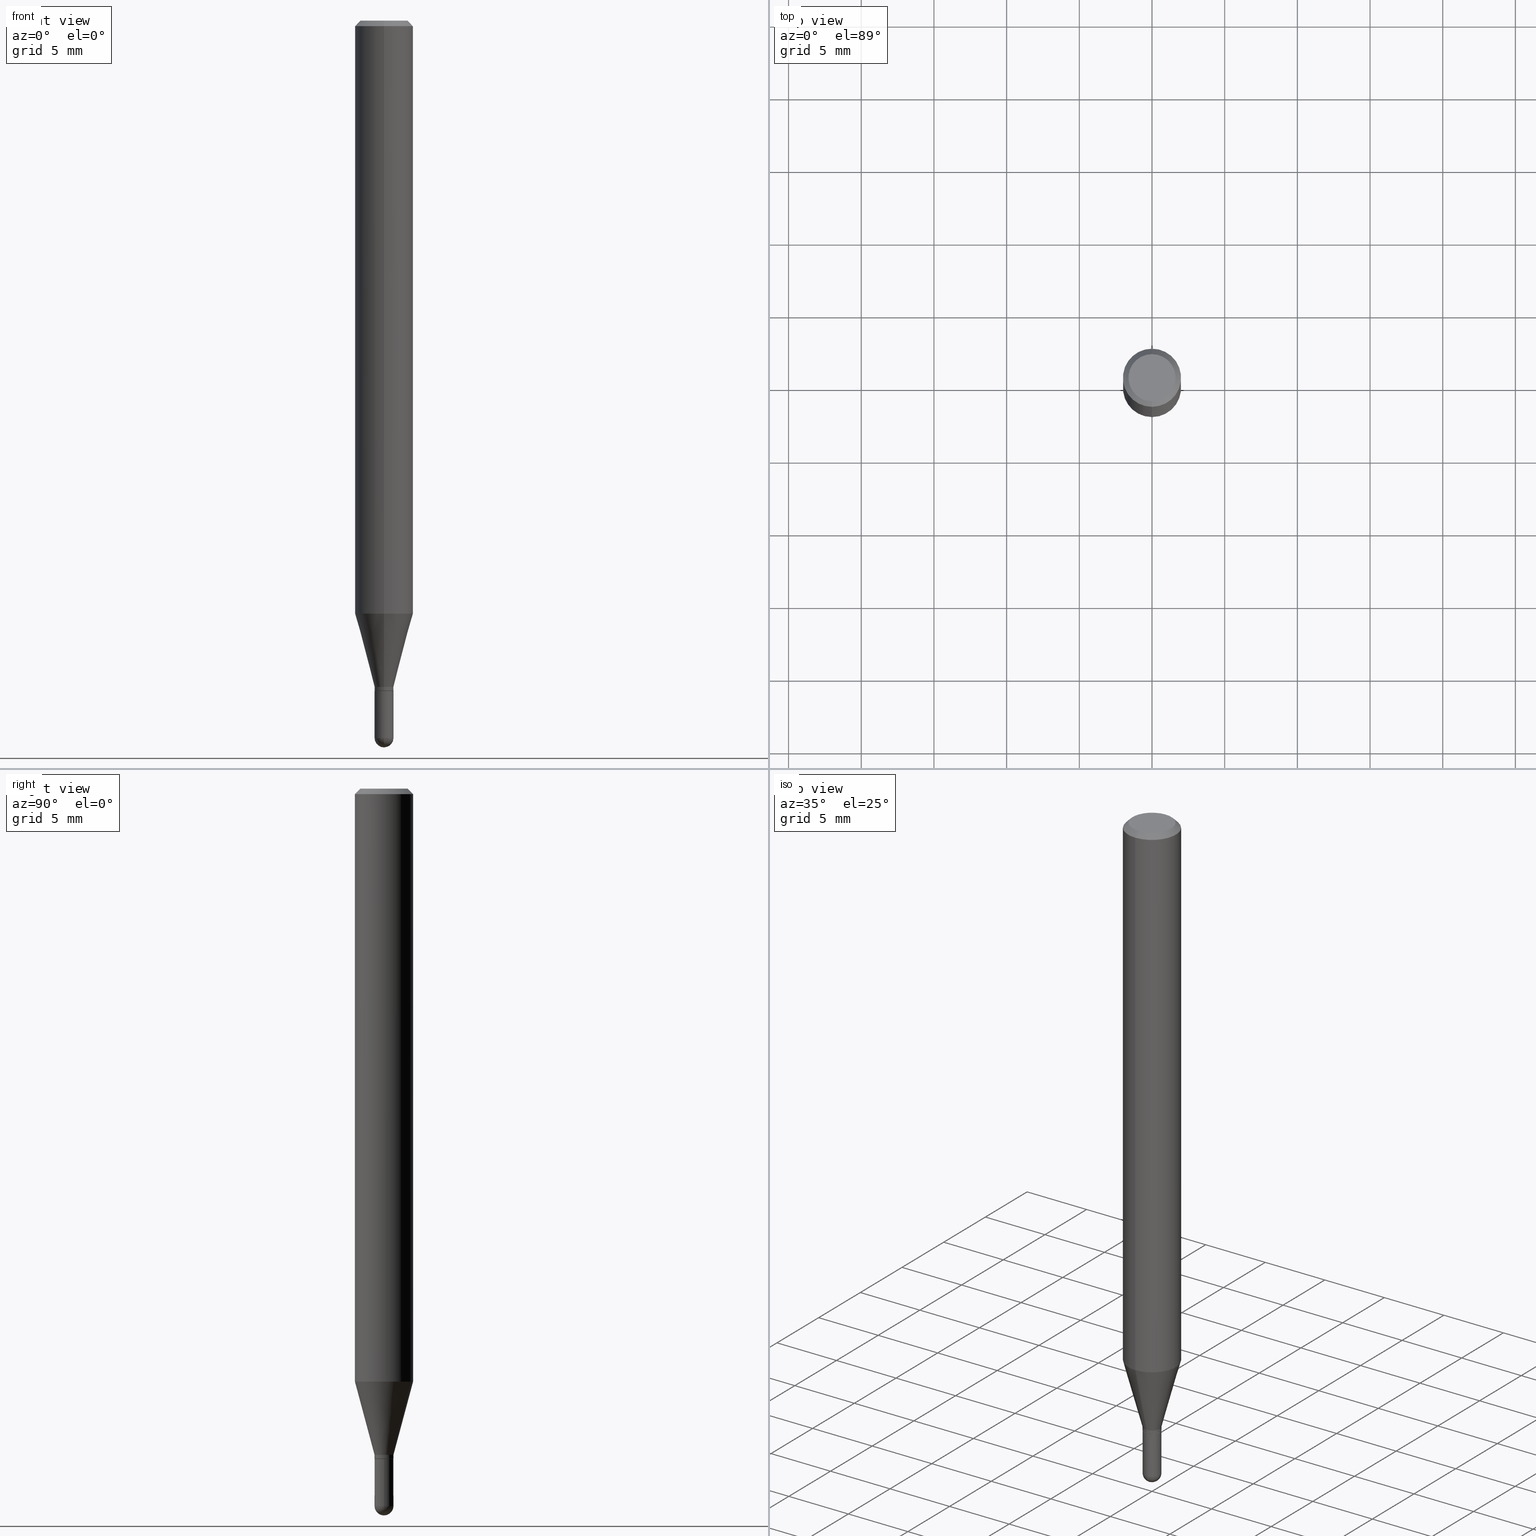
[diagram: canonical four-view strip — front | top / right | iso, engineering-drawing reading convention]
A machine part, canonical four-view strip (front | top / right | iso — engineering-drawing reading convention). The complete STEP part file that produces these views, byte-faithful:
ISO-10303-21;
HEADER;
FILE_DESCRIPTION (( 'STEP AP203' ),
    '1' );
FILE_NAME ('03006.STEP',
    '2024-03-08T18:00:04',
    ( '' ),
    ( '' ),
    'SwSTEP 2.0',
    'SolidWorks 2023',
    '' );
FILE_SCHEMA (( 'CONFIG_CONTROL_DESIGN' ));
ENDSEC;

DATA;
#1 = ORIENTED_EDGE ( 'NONE', *, *, #60, .F. ) ;
#2 = CARTESIAN_POINT ( 'NONE',  ( 5.595524044111178503E-16, 0.07874999999999436617, -1.606141499577714127 ) ) ;
#3 = AXIS2_PLACEMENT_3D ( 'NONE', #13, #451, #167 ) ;
#4 = EDGE_LOOP ( 'NONE', ( #87, #277, #6, #43 ) ) ;
#5 = MECHANICAL_CONTEXT ( 'NONE', #153, 'mechanical' ) ;
#6 = ORIENTED_EDGE ( 'NONE', *, *, #151, .F. ) ;
#7 = ADVANCED_FACE ( 'NONE', ( #249 ), #301, .F. ) ;
#8 = APPROVAL_ROLE ( '' ) ;
#9 = ORIENTED_EDGE ( 'NONE', *, *, #209, .T. ) ;
#10 = CALENDAR_DATE ( 2024, 8, 3 ) ;
#11 = EDGE_LOOP ( 'NONE', ( #435, #394 ) ) ;
#12 = AXIS2_PLACEMENT_3D ( 'NONE', #432, #510, #39 ) ;
#13 = CARTESIAN_POINT ( 'NONE',  ( 1.787638445488127977E-16, 0.02559999999999366602, -1.815000000000000169 ) ) ;
#14 = APPROVAL_STATUS ( 'not_yet_approved' ) ;
#15 = ORIENTED_EDGE ( 'NONE', *, *, #256, .F. ) ;
#16 = DIRECTION ( 'NONE',  ( -6.982962677686264344E-15, -1.000000000000000000, 3.496114991891765576E-15 ) ) ;
#17 = CYLINDRICAL_SURFACE ( 'NONE', #348, 0.07875000000000000056 ) ;
#18 = LOCAL_TIME ( 13, 0, 4.000000000000000000, #361 ) ;
#19 = DIRECTION ( 'NONE',  ( 1.000000000000000000, -6.982962677686263555E-15, 0.000000000000000000 ) ) ;
#20 = CARTESIAN_POINT ( 'NONE',  ( 4.438587763589642652E-29, -6.336950013797593510E-15, -1.814999999999999947 ) ) ;
#21 = VERTEX_POINT ( 'NONE', #411 ) ;
#22 = ADVANCED_FACE ( 'NONE', ( #210 ), #406, .T. ) ;
#23 = FACE_OUTER_BOUND ( 'NONE', #324, .T. ) ;
#24 = VERTEX_POINT ( 'NONE', #371 ) ;
#25 = DIRECTION ( 'NONE',  ( -2.445502900049389790E-29, 3.491432514489032662E-15, 1.000000000000000000 ) ) ;
#26 = CARTESIAN_POINT ( 'NONE',  ( 5.499083108677937401E-16, 0.07874999999999994504, -0.01500000000000029261 ) ) ;
#27 = CARTESIAN_POINT ( 'NONE',  ( 4.749112117836802061E-29, -6.786734189044164629E-15, -1.942899999999999849 ) ) ;
#28 = VECTOR ( 'NONE', #377, 39.37007874015748854 ) ;
#29 = LINE ( 'NONE', #145, #272 ) ;
#30 = AXIS2_PLACEMENT_3D ( 'NONE', #342, #500, #141 ) ;
#31 = DIRECTION ( 'NONE',  ( 4.937700262164548831E-15, 0.7071067811865452413, -0.7071067811865497932 ) ) ;
#32 = CARTESIAN_POINT ( 'NONE',  ( 4.114225145606722561E-46, -5.873859092544759486E-32, -1.682363633886359709E-17 ) ) ;
#33 = ADVANCED_FACE ( 'NONE', ( #453 ), #17, .T. ) ;
#34 = DIRECTION ( 'NONE',  ( 5.024295867790934632E-15, 0.7071067811869542474, 0.7071067811861405650 ) ) ;
#35 =( LENGTH_UNIT ( ) NAMED_UNIT ( * ) SI_UNIT ( $, .METRE. ) );
#36 = APPROVAL_PERSON_ORGANIZATION ( #440, #275, #86 ) ;
#37 = VECTOR ( 'NONE', #463, 39.37007874015748143 ) ;
#38 = SECURITY_CLASSIFICATION ( '', '', #486 ) ;
#39 = DIRECTION ( 'NONE',  ( -6.982962677686264344E-15, -1.000000000000000000, 3.469013325287953293E-15 ) ) ;
#40 = ORIENTED_EDGE ( 'NONE', *, *, #385, .F. ) ;
#41 = EDGE_CURVE ( 'NONE', #403, #158, #329, .T. ) ;
#42 = LINE ( 'NONE', #75, #214 ) ;
#43 = ORIENTED_EDGE ( 'NONE', *, *, #93, .F. ) ;
#44 = FACE_OUTER_BOUND ( 'NONE', #337, .T. ) ;
#45 = AXIS2_PLACEMENT_3D ( 'NONE', #341, #415, #454 ) ;
#46 = EDGE_CURVE ( 'NONE', #400, #166, #282, .T. ) ;
#47 = CONICAL_SURFACE ( 'NONE', #488, 0.07875000000000000056, 0.7853981633974485010 ) ;
#48 = EDGE_LOOP ( 'NONE', ( #114, #123, #196, #40 ) ) ;
#49 = APPROVAL_PERSON_ORGANIZATION ( #286, #221, #8 ) ;
#50 = DIMENSIONAL_EXPONENTS ( 1.000000000000000000, 0.000000000000000000, 0.000000000000000000, 0.000000000000000000, 0.000000000000000000, 0.000000000000000000, 0.000000000000000000 ) ;
#51 = EDGE_LOOP ( 'NONE', ( #340, #285, #1, #15 ) ) ;
#52 = EDGE_LOOP ( 'NONE', ( #374, #477, #364, #360 ) ) ;
#53 = ORIENTED_EDGE ( 'NONE', *, *, #93, .T. ) ;
#54 = CONICAL_SURFACE ( 'NONE', #181, 0.02559999999999964734, 0.2617993877991505181 ) ;
#55 = PERSON_AND_ORGANIZATION ( #120, #311 ) ;
#56 = DIRECTION ( 'NONE',  ( -2.445502900049389790E-29, 3.491432514489032662E-15, 1.000000000000000000 ) ) ;
#57 = CYLINDRICAL_SURFACE ( 'NONE', #139, 0.07875000000000000056 ) ;
#58 = EDGE_LOOP ( 'NONE', ( #280, #319, #112, #322 ) ) ;
#59 = CARTESIAN_POINT ( 'NONE',  ( 4.438525883226023529E-29, -6.337038630000309601E-15, -1.815000000000000169 ) ) ;
#60 = EDGE_CURVE ( 'NONE', #21, #84, #90, .T. ) ;
#61 = ADVANCED_FACE ( 'NONE', ( #206 ), #213, .F. ) ;
#62 = CARTESIAN_POINT ( 'NONE',  ( 4.751301343537101385E-29, -6.783599093238347569E-15, -1.942899999999999849 ) ) ;
#63 = LOCAL_TIME ( 13, 0, 4.000000000000000000, #162 ) ;
#64 = CARTESIAN_POINT ( 'NONE',  ( -1.752723632098809204E-16, -0.02510000000000633946, -1.814999999999999947 ) ) ;
#65 = CARTESIAN_POINT ( 'NONE',  ( -5.402642173245076924E-16, -0.07875000000000004219, -0.01499999999999974097 ) ) ;
#66 = DIRECTION ( 'NONE',  ( 1.000000000000000000, -6.982962677686263555E-15, 0.000000000000000000 ) ) ;
#67 = LINE ( 'NONE', #218, #77 ) ;
#68 = DIRECTION ( 'NONE',  ( 6.982962677686266711E-15, 1.000000000000000000, 0.000000000000000000 ) ) ;
#69 = DIRECTION ( 'NONE',  ( -2.445468806185136597E-29, 3.491481338843145583E-15, 1.000000000000000000 ) ) ;
#70 = CYLINDRICAL_SURFACE ( 'NONE', #373, 0.02559999999999992490 ) ;
#71 = CARTESIAN_POINT ( 'NONE',  ( -5.499083108677933457E-16, -0.07875000000000000056, 2.749503105160112772E-16 ) ) ;
#72 = CARTESIAN_POINT ( 'NONE',  ( 4.438587763589642652E-29, -6.336950013797593510E-15, -1.814999999999999947 ) ) ;
#73 = AXIS2_PLACEMENT_3D ( 'NONE', #20, #186, #98 ) ;
#74 = LINE ( 'NONE', #421, #426 ) ;
#75 = CARTESIAN_POINT ( 'NONE',  ( 1.783462266758295010E-16, 0.02509999999999366210, -1.814999999999999947 ) ) ;
#76 = CARTESIAN_POINT ( 'NONE',  ( 4.975360907851465623E-16, 0.06374999999999998723, -2.394024591375393642E-16 ) ) ;
#77 = VECTOR ( 'NONE', #497, 39.37007874015748854 ) ;
#78 = DIRECTION ( 'NONE',  ( 1.000000000000000000, -6.982962677686263555E-15, 0.000000000000000000 ) ) ;
#79 = EDGE_LOOP ( 'NONE', ( #92, #459, #397, #194 ) ) ;
#80 = ORIENTED_EDGE ( 'NONE', *, *, #227, .T. ) ;
#81 = DATE_TIME_ROLE ( 'creation_date' ) ;
#82 = AXIS2_PLACEMENT_3D ( 'NONE', #170, #25, #178 ) ;
#83 = CC_DESIGN_APPROVAL ( #173, ( #396 ) ) ;
#84 = VERTEX_POINT ( 'NONE', #504 ) ;
#85 = VERTEX_POINT ( 'NONE', #260 ) ;
#86 = APPROVAL_ROLE ( '' ) ;
#87 = ORIENTED_EDGE ( 'NONE', *, *, #480, .T. ) ;
#88 = EDGE_CURVE ( 'NONE', #400, #85, #74, .T. ) ;
#89 = DIRECTION ( 'NONE',  ( -2.445502900049389790E-29, 3.491432514489032662E-15, 1.000000000000000000 ) ) ;
#90 = CIRCLE ( 'NONE', #225, 0.02560000000000019899 ) ;
#91 = DATE_AND_TIME ( #236, #63 ) ;
#92 = ORIENTED_EDGE ( 'NONE', *, *, #370, .F. ) ;
#93 = EDGE_CURVE ( 'NONE', #160, #448, #108, .T. ) ;
#94 = CARTESIAN_POINT ( 'NONE',  ( 0.000000000000000000, 0.000000000000000000, 0.000000000000000000 ) ) ;
#95 = ADVANCED_FACE ( 'NONE', ( #308 ), #47, .T. ) ;
#96 = ORIENTED_EDGE ( 'NONE', *, *, #161, .T. ) ;
#97 = CARTESIAN_POINT ( 'NONE',  ( 4.412909983139123544E-29, -6.300289972395460224E-15, -1.804500000000000215 ) ) ;
#98 = DIRECTION ( 'NONE',  ( -6.982962677686266711E-15, -1.000000000000000000, 0.000000000000000000 ) ) ;
#99 = CC_DESIGN_PERSON_AND_ORGANIZATION_ASSIGNMENT ( #323, #126, ( #38 ) ) ;
#100 = ORIENTED_EDGE ( 'NONE', *, *, #480, .F. ) ;
#101 = AXIS2_PLACEMENT_3D ( 'NONE', #183, #103, #68 ) ;
#102 = DIRECTION ( 'NONE',  ( -6.982962677686266711E-15, -1.000000000000000000, 0.000000000000000000 ) ) ;
#103 = DIRECTION ( 'NONE',  ( 1.000000000000000000, -6.982962677686265922E-15, 4.883557194083112340E-29 ) ) ;
#104 = ORIENTED_EDGE ( 'NONE', *, *, #200, .T. ) ;
#105 = DIRECTION ( 'NONE',  ( 1.000000000000000000, -6.982962677686263555E-15, 0.000000000000000000 ) ) ;
#106 = SPHERICAL_SURFACE ( 'NONE', #271, 0.02560000000000007062 ) ;
#107 = FACE_OUTER_BOUND ( 'NONE', #376, .T. ) ;
#108 = LINE ( 'NONE', #71, #310 ) ;
#109 = CC_DESIGN_APPROVAL ( #221, ( #449 ) ) ;
#110 = CARTESIAN_POINT ( 'NONE',  ( -5.499083108677930499E-16, -0.07875000000000004219, -0.01499999999999974097 ) ) ;
#111 = AXIS2_PLACEMENT_3D ( 'NONE', #462, #262, #502 ) ;
#112 = ORIENTED_EDGE ( 'NONE', *, *, #314, .F. ) ;
#113 = CARTESIAN_POINT ( 'NONE',  ( -1.787638445487678819E-16, -0.02559999999999992490, 8.938067237091897317E-17 ) ) ;
#114 = ORIENTED_EDGE ( 'NONE', *, *, #163, .F. ) ;
#115 = APPROVAL_STATUS ( 'not_yet_approved' ) ;
#116 = ORIENTED_EDGE ( 'NONE', *, *, #278, .T. ) ;
#117 = DATE_AND_TIME ( #10, #189 ) ;
#118 = CIRCLE ( 'NONE', #111, 0.07875000000000000056 ) ;
#119 = ORIENTED_EDGE ( 'NONE', *, *, #399, .F. ) ;
#120 = PERSON ( 'UNSPECIFIED', 'UNSPECIFIED', 'UNSPECIFIED', ('UNSPECIFIED'), ('UNSPECIFIED'), ('UNSPECIFIED') ) ;
#121 = APPLICATION_PROTOCOL_DEFINITION ( 'international standard', 'config_control_design', 1994, #430 ) ;
#122 = ADVANCED_FACE ( 'NONE', ( #305 ), #106, .T. ) ;
#123 = ORIENTED_EDGE ( 'NONE', *, *, #279, .T. ) ;
#124 = CC_DESIGN_DATE_AND_TIME_ASSIGNMENT ( #117, #81, ( #449 ) ) ;
#125 = CARTESIAN_POINT ( 'NONE',  ( 4.437365012139618386E-29, -6.335204297540350720E-15, -1.814500000000000224 ) ) ;
#126 = PERSON_AND_ORGANIZATION_ROLE ( 'classification_officer' ) ;
#127 = EDGE_LOOP ( 'NONE', ( #445, #234 ) ) ;
#128 = VECTOR ( 'NONE', #171, 39.37007874015748143 ) ;
#129 = CIRCLE ( 'NONE', #30, 0.06374999999999998723 ) ;
#130 = DIRECTION ( 'NONE',  ( -1.000000000000000000, 7.105427357601001070E-15, -4.926315508542082329E-29 ) ) ;
#131 = DIRECTION ( 'NONE',  ( -6.982962677686266711E-15, -1.000000000000000000, 0.000000000000000000 ) ) ;
#132 = ORIENTED_EDGE ( 'NONE', *, *, #88, .F. ) ;
#133 = DIRECTION ( 'NONE',  ( 1.000000000000000000, -6.982962677686263555E-15, 0.000000000000000000 ) ) ;
#134 = CARTESIAN_POINT ( 'NONE',  ( 5.595524044110787031E-16, 0.07875000000000000056, -2.749503105160112772E-16 ) ) ;
#135 = CARTESIAN_POINT ( 'NONE',  ( 0.02560000000000000470, -6.739082706168097256E-15, -1.942899999999999849 ) ) ;
#136 = FACE_OUTER_BOUND ( 'NONE', #48, .T. ) ;
#137 = ORIENTED_EDGE ( 'NONE', *, *, #46, .T. ) ;
#138 = AXIS2_PLACEMENT_3D ( 'NONE', #175, #298, #246 ) ;
#139 = AXIS2_PLACEMENT_3D ( 'NONE', #94, #208, #368 ) ;
#140 = DIRECTION ( 'NONE',  ( 6.982962677686265922E-15, 1.000000000000000000, -3.491432514489032662E-15 ) ) ;
#141 = DIRECTION ( 'NONE',  ( -6.982962677686265922E-15, -1.000000000000000000, 3.491432514489032662E-15 ) ) ;
#142 = EDGE_CURVE ( 'NONE', #482, #158, #378, .T. ) ;
#143 = CARTESIAN_POINT ( 'NONE',  ( 5.595524044111183434E-16, 0.07874999999999994504, -0.01500000000000029261 ) ) ;
#144 = FACE_OUTER_BOUND ( 'NONE', #4, .T. ) ;
#145 = CARTESIAN_POINT ( 'NONE',  ( 0.02560000000000000470, -1.787638445487684735E-16, 1.248301254603759692E-30 ) ) ;
#146 = DIRECTION ( 'NONE',  ( -2.445468806185136877E-29, 3.491481338843145188E-15, 1.000000000000000000 ) ) ;
#147 = CYLINDRICAL_SURFACE ( 'NONE', #317, 0.02560000000000000470 ) ;
#148 = MANIFOLD_SOLID_BREP ( 'Body-Move/Copy2[2]', #255 ) ;
#149 = MANIFOLD_SOLID_BREP ( 'Body-Move/Copy2[1]', #180 ) ;
#150 = AXIS2_PLACEMENT_3D ( 'NONE', #345, #293, #336 ) ;
#151 = EDGE_CURVE ( 'NONE', #448, #158, #118, .T. ) ;
#152 = AXIS2_PLACEMENT_3D ( 'NONE', #503, #423, #261 ) ;
#153 = APPLICATION_CONTEXT ( 'configuration controlled 3d designs of mechanical parts and assemblies' ) ;
#154 = VERTEX_POINT ( 'NONE', #179 ) ;
#155 = DIRECTION ( 'NONE',  ( -2.445502900049389790E-29, 3.491432514489032662E-15, 1.000000000000000000 ) ) ;
#156 = VERTEX_POINT ( 'NONE', #343 ) ;
#157 = COORDINATED_UNIVERSAL_TIME_OFFSET ( 5, 0, .BEHIND. ) ;
#158 = VERTEX_POINT ( 'NONE', #143 ) ;
#159 = PERSON_AND_ORGANIZATION_ROLE ( 'creator' ) ;
#160 = VERTEX_POINT ( 'NONE', #424 ) ;
#161 = EDGE_CURVE ( 'NONE', #156, #160, #382, .T. ) ;
#162 = COORDINATED_UNIVERSAL_TIME_OFFSET ( 5, 0, .BEHIND. ) ;
#163 = EDGE_CURVE ( 'NONE', #84, #154, #410, .T. ) ;
#164 = AXIS2_PLACEMENT_3D ( 'NONE', #372, #259, #16 ) ;
#165 = CIRCLE ( 'NONE', #12, 0.07875000000000000056 ) ;
#166 = VERTEX_POINT ( 'NONE', #375 ) ;
#167 = DIRECTION ( 'NONE',  ( -1.000000000000000000, 6.982962677686265922E-15, -4.876176775795935793E-29 ) ) ;
#168 = PERSON_AND_ORGANIZATION ( #120, #311 ) ;
#169 = ORIENTED_EDGE ( 'NONE', *, *, #88, .T. ) ;
#170 = CARTESIAN_POINT ( 'NONE',  ( 0.000000000000000000, 0.000000000000000000, 0.000000000000000000 ) ) ;
#171 = DIRECTION ( 'NONE',  ( -2.445502900049389790E-29, 3.491432514489032662E-15, 1.000000000000000000 ) ) ;
#172 = CIRCLE ( 'NONE', #418, 0.02560000000000000470 ) ;
#173 = APPROVAL ( #398, 'UNSPECIFIED' ) ;
#174 = FACE_OUTER_BOUND ( 'NONE', #79, .T. ) ;
#175 = CARTESIAN_POINT ( 'NONE',  ( 4.438587763589643213E-29, -6.336950013797595087E-15, -1.815000000000000169 ) ) ;
#176 = PLANE ( 'NONE',  #238 ) ;
#177 = ORIENTED_EDGE ( 'NONE', *, *, #422, .F. ) ;
#178 = DIRECTION ( 'NONE',  ( -6.982962677686265922E-15, -1.000000000000000000, 3.491432514489032662E-15 ) ) ;
#179 = CARTESIAN_POINT ( 'NONE',  ( 3.707256723828727444E-16, 0.02559999999999335030, -1.804500000000000215 ) ) ;
#180 = CLOSED_SHELL ( 'NONE', ( #501, #512, #7, #122, #466 ) ) ;
#181 = AXIS2_PLACEMENT_3D ( 'NONE', #188, #155, #429 ) ;
#182 = LINE ( 'NONE', #64, #438 ) ;
#183 = CARTESIAN_POINT ( 'NONE',  ( 4.749112117836802061E-29, -6.786734189044164629E-15, -1.942899999999999849 ) ) ;
#184 = CC_DESIGN_PERSON_AND_ORGANIZATION_ASSIGNMENT ( #55, #447, ( #396 ) ) ;
#185 = DIRECTION ( 'NONE',  ( 6.982962677686266711E-15, 1.000000000000000000, 0.000000000000000000 ) ) ;
#186 = DIRECTION ( 'NONE',  ( -2.445502900049389790E-29, 3.491432514489032662E-15, 1.000000000000000000 ) ) ;
#187 = EDGE_CURVE ( 'NONE', #85, #408, #363, .T. ) ;
#188 = CARTESIAN_POINT ( 'NONE',  ( 4.412909983139123544E-29, -6.300289972395460224E-15, -1.804500000000000215 ) ) ;
#189 = LOCAL_TIME ( 13, 0, 4.000000000000000000, #359 ) ;
#190 = DIRECTION ( 'NONE',  ( -6.982962677686264344E-15, -1.000000000000000000, 3.469013325287953293E-15 ) ) ;
#191 = DIRECTION ( 'NONE',  ( 1.000000000000000000, -6.982962677686267499E-15, 4.876176775795935232E-29 ) ) ;
#192 = ORIENTED_EDGE ( 'NONE', *, *, #295, .F. ) ;
#193 = DIRECTION ( 'NONE',  ( -2.445502900049389790E-29, 3.491432514489032662E-15, 1.000000000000000000 ) ) ;
#194 = ORIENTED_EDGE ( 'NONE', *, *, #142, .F. ) ;
#195 = DESIGN_CONTEXT ( 'detailed design', #430, 'design' ) ;
#196 = ORIENTED_EDGE ( 'NONE', *, *, #496, .T. ) ;
#197 = ADVANCED_FACE ( 'NONE', ( #303 ), #222, .T. ) ;
#198 = ORIENTED_EDGE ( 'NONE', *, *, #227, .F. ) ;
#199 = PRODUCT_DEFINITION_SHAPE ( 'NONE', 'NONE',  #449 ) ;
#200 = EDGE_CURVE ( 'NONE', #331, #335, #237, .T. ) ;
#201 = ORIENTED_EDGE ( 'NONE', *, *, #386, .T. ) ;
#202 = CC_DESIGN_SECURITY_CLASSIFICATION ( #38, ( #396 ) ) ;
#203 = CONICAL_SURFACE ( 'NONE', #350, 0.02510000000000000078, 0.7853981633980202659 ) ;
#204 = ORIENTED_EDGE ( 'NONE', *, *, #279, .F. ) ;
#205 = DATE_AND_TIME ( #481, #507 ) ;
#206 = FACE_OUTER_BOUND ( 'NONE', #127, .T. ) ;
#207 = ADVANCED_BREP_SHAPE_REPRESENTATION ( '03006', ( #149, #148, #266 ), #383 ) ;
#208 = DIRECTION ( 'NONE',  ( -2.445502900049389790E-29, 3.491432514489032662E-15, 1.000000000000000000 ) ) ;
#209 = EDGE_CURVE ( 'NONE', #244, #166, #245, .T. ) ;
#210 = FACE_OUTER_BOUND ( 'NONE', #240, .T. ) ;
#211 = DIRECTION ( 'NONE',  ( 1.000000000000000000, -6.982962677686263555E-15, 0.000000000000000000 ) ) ;
#212 = CIRCLE ( 'NONE', #416, 0.02560000000000000470 ) ;
#213 = PLANE ( 'NONE',  #138 ) ;
#214 = VECTOR ( 'NONE', #34, 39.37007874015748854 ) ;
#215 = CARTESIAN_POINT ( 'NONE',  ( 4.751301343537101385E-29, -6.783599093238347569E-15, -1.942899999999999849 ) ) ;
#216 = DIRECTION ( 'NONE',  ( -4.851104656540965064E-15, -0.7071067811865501263, -0.7071067811865449082 ) ) ;
#217 = DIRECTION ( 'NONE',  ( -6.982962677686265922E-15, -1.000000000000000000, 0.000000000000000000 ) ) ;
#218 = CARTESIAN_POINT ( 'NONE',  ( 1.818989403546272441E-16, 0.02559999999999335030, -1.804500000000000215 ) ) ;
#219 = LINE ( 'NONE', #65, #475 ) ;
#220 = CARTESIAN_POINT ( 'NONE',  ( 4.749112117836802061E-29, -6.786734189044164629E-15, -1.942899999999999849 ) ) ;
#221 = APPROVAL ( #14, 'UNSPECIFIED' ) ;
#222 = CYLINDRICAL_SURFACE ( 'NONE', #82, 0.02559999999999992490 ) ;
#223 = DIRECTION ( 'NONE',  ( -6.982962677686265133E-15, -1.000000000000000000, 0.000000000000000000 ) ) ;
#224 = DIRECTION ( 'NONE',  ( -1.000000000000000000, 6.982962677686266711E-15, -4.883557194083112901E-29 ) ) ;
#225 = AXIS2_PLACEMENT_3D ( 'NONE', #125, #89, #217 ) ;
#226 = AXIS2_PLACEMENT_3D ( 'NONE', #304, #461, #223 ) ;
#227 = EDGE_CURVE ( 'NONE', #158, #448, #316, .T. ) ;
#228 = SPHERICAL_SURFACE ( 'NONE', #302, 0.02560000000000007062 ) ;
#229 = FACE_OUTER_BOUND ( 'NONE', #509, .T. ) ;
#230 = AXIS2_PLACEMENT_3D ( 'NONE', #62, #485, #66 ) ;
#231 = AXIS2_PLACEMENT_3D ( 'NONE', #32, #464, #380 ) ;
#232 = DIRECTION ( 'NONE',  ( -2.445502900049389790E-29, 3.491432514489032662E-15, 1.000000000000000000 ) ) ;
#233 =( CONVERSION_BASED_UNIT ( 'INCH', #312 ) LENGTH_UNIT ( ) NAMED_UNIT ( #50 ) );
#234 = ORIENTED_EDGE ( 'NONE', *, *, #401, .F. ) ;
#235 = EDGE_LOOP ( 'NONE', ( #252, #270, #289, #80 ) ) ;
#236 = CALENDAR_DATE ( 2024, 8, 3 ) ;
#237 = CIRCLE ( 'NONE', #473, 0.02560000000000000470 ) ;
#238 = AXIS2_PLACEMENT_3D ( 'NONE', #339, #495, #140 ) ;
#239 = ADVANCED_FACE ( 'NONE', ( #174 ), #381, .T. ) ;
#240 = EDGE_LOOP ( 'NONE', ( #492, #494, #96, #437 ) ) ;
#241 = PERSON_AND_ORGANIZATION_ROLE ( 'design_owner' ) ;
#242 = ORIENTED_EDGE ( 'NONE', *, *, #349, .T. ) ;
#243 = DATE_AND_TIME ( #402, #18 ) ;
#244 = VERTEX_POINT ( 'NONE', #306 ) ;
#245 = CIRCLE ( 'NONE', #388, 0.02560000000000007062 ) ;
#246 = DIRECTION ( 'NONE',  ( -6.982962677686265922E-15, -1.000000000000000000, 3.491432514489032662E-15 ) ) ;
#247 = COORDINATED_UNIVERSAL_TIME_OFFSET ( 5, 0, .BEHIND. ) ;
#248 = CARTESIAN_POINT ( 'NONE',  ( 4.751301343537101385E-29, -6.783599093238347569E-15, -1.942899999999999849 ) ) ;
#249 = FACE_OUTER_BOUND ( 'NONE', #11, .T. ) ;
#250 = PRODUCT ( '03006', '03006', '', ( #5 ) ) ;
#251 = DIRECTION ( 'NONE',  ( -2.445468806185136597E-29, 3.491481338843145583E-15, 1.000000000000000000 ) ) ;
#252 = ORIENTED_EDGE ( 'NONE', *, *, #369, .F. ) ;
#253 = DIRECTION ( 'NONE',  ( -6.982962677686265133E-15, -1.000000000000000000, 0.000000000000000000 ) ) ;
#254 = EDGE_CURVE ( 'NONE', #433, #24, #333, .T. ) ;
#255 = CLOSED_SHELL ( 'NONE', ( #197, #297, #239, #284, #441, #22, #33, #95, #320, #61, #351, #353 ) ) ;
#256 = EDGE_CURVE ( 'NONE', #433, #21, #182, .T. ) ;
#257 = ORIENTED_EDGE ( 'NONE', *, *, #256, .T. ) ;
#258 = AXIS2_PLACEMENT_3D ( 'NONE', #215, #251, #19 ) ;
#259 = DIRECTION ( 'NONE',  ( -2.445502900049389790E-29, 3.491432514489032662E-15, 1.000000000000000000 ) ) ;
#260 = CARTESIAN_POINT ( 'NONE',  ( -0.02560000000000000470, -6.378419921264742855E-15, -1.815000000000000169 ) ) ;
#261 = DIRECTION ( 'NONE',  ( -6.982962677686265922E-15, -1.000000000000000000, 0.000000000000000000 ) ) ;
#262 = DIRECTION ( 'NONE',  ( -2.445502900049389790E-29, 3.491432514489032662E-15, 1.000000000000000000 ) ) ;
#263 = DIRECTION ( 'NONE',  ( -2.445468806185136877E-29, 3.491481338843145188E-15, 1.000000000000000000 ) ) ;
#264 = CARTESIAN_POINT ( 'NONE',  ( 3.668254350074088416E-31, -5.237148771733555328E-17, -0.01500000000000001679 ) ) ;
#265 = VECTOR ( 'NONE', #31, 39.37007874015748143 ) ;
#266 = AXIS2_PLACEMENT_3D ( 'NONE', #313, #273, #393 ) ;
#267 = CC_DESIGN_PERSON_AND_ORGANIZATION_ASSIGNMENT ( #321, #241, ( #250 ) ) ;
#268 = DIRECTION ( 'NONE',  ( -1.000000000000000000, 6.982962677686266711E-15, -4.883557194083112901E-29 ) ) ;
#269 = DIRECTION ( 'NONE',  ( 1.000000000000000000, -6.982962677686267499E-15, 4.876176775795935232E-29 ) ) ;
#270 = ORIENTED_EDGE ( 'NONE', *, *, #386, .F. ) ;
#271 = AXIS2_PLACEMENT_3D ( 'NONE', #220, #224, #185 ) ;
#272 = VECTOR ( 'NONE', #263, 39.37007874015748143 ) ;
#273 = DIRECTION ( 'NONE',  ( 0.000000000000000000, 0.000000000000000000, 1.000000000000000000 ) ) ;
#274 = EDGE_LOOP ( 'NONE', ( #315, #9, #287, #192 ) ) ;
#275 = APPROVAL ( #115, 'UNSPECIFIED' ) ;
#276 = DIRECTION ( 'NONE',  ( -2.445468806185136597E-29, 3.491481338843145583E-15, 1.000000000000000000 ) ) ;
#277 = ORIENTED_EDGE ( 'NONE', *, *, #41, .T. ) ;
#278 = EDGE_CURVE ( 'NONE', #166, #331, #212, .T. ) ;
#279 = EDGE_CURVE ( 'NONE', #84, #21, #483, .T. ) ;
#280 = ORIENTED_EDGE ( 'NONE', *, *, #60, .T. ) ;
#281 = PERSON_AND_ORGANIZATION_ROLE ( 'creator' ) ;
#282 = CIRCLE ( 'NONE', #230, 0.02560000000000000470 ) ;
#283 = VECTOR ( 'NONE', #193, 39.37007874015748143 ) ;
#284 = ADVANCED_FACE ( 'NONE', ( #144 ), #57, .T. ) ;
#285 = ORIENTED_EDGE ( 'NONE', *, *, #422, .T. ) ;
#286 = PERSON_AND_ORGANIZATION ( #120, #311 ) ;
#287 = ORIENTED_EDGE ( 'NONE', *, *, #46, .F. ) ;
#288 = APPROVAL_ROLE ( '' ) ;
#289 = ORIENTED_EDGE ( 'NONE', *, *, #142, .T. ) ;
#290 = APPROVAL_DATE_TIME ( #405, #221 ) ;
#291 = CIRCLE ( 'NONE', #101, 0.02560000000000007062 ) ;
#292 = ORIENTED_EDGE ( 'NONE', *, *, #187, .F. ) ;
#293 = DIRECTION ( 'NONE',  ( -2.445502900049389790E-29, 3.491432514489032662E-15, 1.000000000000000000 ) ) ;
#294 = ORIENTED_EDGE ( 'NONE', *, *, #41, .F. ) ;
#295 = EDGE_CURVE ( 'NONE', #335, #400, #431, .T. ) ;
#296 = CARTESIAN_POINT ( 'NONE',  ( -1.787638445487218075E-16, -0.02560000000000594786, -1.804500000000000215 ) ) ;
#297 = ADVANCED_FACE ( 'NONE', ( #499 ), #203, .T. ) ;
#298 = DIRECTION ( 'NONE',  ( -2.445502900049389510E-29, 3.491432514489032662E-15, 1.000000000000000000 ) ) ;
#299 = CARTESIAN_POINT ( 'NONE',  ( 1.787638445488161750E-16, 0.02559999999999324968, -1.942899999999999849 ) ) ;
#300 = DIRECTION ( 'NONE',  ( -2.445502900049389790E-29, 3.491432514489032662E-15, 1.000000000000000000 ) ) ;
#301 = PLANE ( 'NONE',  #3 ) ;
#302 = AXIS2_PLACEMENT_3D ( 'NONE', #309, #268, #428 ) ;
#303 = FACE_OUTER_BOUND ( 'NONE', #58, .T. ) ;
#304 = CARTESIAN_POINT ( 'NONE',  ( 4.412909983139123544E-29, -6.300289972395460224E-15, -1.804500000000000215 ) ) ;
#305 = FACE_OUTER_BOUND ( 'NONE', #52, .T. ) ;
#306 = CARTESIAN_POINT ( 'NONE',  ( 4.812810732125291051E-29, -6.874548563415640631E-15, -1.968500000000000139 ) ) ;
#307 = CARTESIAN_POINT ( 'NONE',  ( 0.000000000000000000, 0.000000000000000000, 0.000000000000000000 ) ) ;
#308 = FACE_OUTER_BOUND ( 'NONE', #235, .T. ) ;
#309 = CARTESIAN_POINT ( 'NONE',  ( 4.749112117836802061E-29, -6.786734189044164629E-15, -1.942899999999999849 ) ) ;
#310 = VECTOR ( 'NONE', #346, 39.37007874015748143 ) ;
#311 = ORGANIZATION ( 'UNSPECIFIED', 'UNSPECIFIED', '' ) ;
#312 = LENGTH_MEASURE_WITH_UNIT ( LENGTH_MEASURE( 0.02539999999999999897 ), #35 );
#313 = CARTESIAN_POINT ( 'NONE',  ( 0.000000000000000000, 0.000000000000000000, 0.000000000000000000 ) ) ;
#314 = EDGE_CURVE ( 'NONE', #156, #154, #356, .T. ) ;
#315 = ORIENTED_EDGE ( 'NONE', *, *, #366, .F. ) ;
#316 = CIRCLE ( 'NONE', #164, 0.07875000000000000056 ) ;
#317 = AXIS2_PLACEMENT_3D ( 'NONE', #476, #276, #191 ) ;
#318 = DIRECTION ( 'NONE',  ( -2.445468806185136597E-29, 3.491481338843145583E-15, 1.000000000000000000 ) ) ;
#319 = ORIENTED_EDGE ( 'NONE', *, *, #163, .T. ) ;
#320 = ADVANCED_FACE ( 'NONE', ( #23 ), #176, .F. ) ;
#321 = PERSON_AND_ORGANIZATION ( #120, #311 ) ;
#322 = ORIENTED_EDGE ( 'NONE', *, *, #496, .F. ) ;
#323 = PERSON_AND_ORGANIZATION ( #120, #311 ) ;
#324 = EDGE_LOOP ( 'NONE', ( #201, #328 ) ) ;
#325 = APPROVAL_DATE_TIME ( #205, #275 ) ;
#326 = AXIS2_PLACEMENT_3D ( 'NONE', #59, #69, #211 ) ;
#327 = CIRCLE ( 'NONE', #508, 0.07875000000000000056 ) ;
#328 = ORIENTED_EDGE ( 'NONE', *, *, #370, .T. ) ;
#329 = LINE ( 'NONE', #134, #128 ) ;
#330 = CALENDAR_DATE ( 2024, 8, 3 ) ;
#331 = VERTEX_POINT ( 'NONE', #135 ) ;
#332 = DIRECTION ( 'NONE',  ( -7.105427357601001070E-15, -1.000000000000000000, 0.000000000000000000 ) ) ;
#333 = CIRCLE ( 'NONE', #150, 0.02510000000000000078 ) ;
#334 = LOCAL_TIME ( 13, 0, 4.000000000000000000, #157 ) ;
#335 = VERTEX_POINT ( 'NONE', #299 ) ;
#336 = DIRECTION ( 'NONE',  ( -6.982962677686266711E-15, -1.000000000000000000, 0.000000000000000000 ) ) ;
#337 = EDGE_LOOP ( 'NONE', ( #132, #137, #116, #498, #292 ) ) ;
#338 = CC_DESIGN_PERSON_AND_ORGANIZATION_ASSIGNMENT ( #168, #159, ( #396 ) ) ;
#339 = CARTESIAN_POINT ( 'NONE',  ( 4.451638707024993845E-16, 0.06374999999999998723, -2.309906409681076211E-16 ) ) ;
#340 = ORIENTED_EDGE ( 'NONE', *, *, #254, .T. ) ;
#341 = CARTESIAN_POINT ( 'NONE',  ( 3.668254350074088416E-31, -5.237148771733555328E-17, -0.01500000000000001679 ) ) ;
#342 = CARTESIAN_POINT ( 'NONE',  ( 4.114225145606722561E-46, -5.873859092544759486E-32, -1.682363633886359709E-17 ) ) ;
#343 = CARTESIAN_POINT ( 'NONE',  ( -1.787638445487218075E-16, -0.02560000000000594786, -1.804500000000000215 ) ) ;
#344 = CIRCLE ( 'NONE', #226, 0.02559999999999964734 ) ;
#345 = CARTESIAN_POINT ( 'NONE',  ( 4.438587763589642652E-29, -6.336950013797593510E-15, -1.814999999999999947 ) ) ;
#346 = DIRECTION ( 'NONE',  ( -2.445502900049389790E-29, 3.491432514489032662E-15, 1.000000000000000000 ) ) ;
#347 = CARTESIAN_POINT ( 'NONE',  ( -1.752723632098809204E-16, -0.02510000000000633946, -1.814999999999999947 ) ) ;
#348 = AXIS2_PLACEMENT_3D ( 'NONE', #487, #56, #446 ) ;
#349 = EDGE_CURVE ( 'NONE', #154, #403, #67, .T. ) ;
#350 = AXIS2_PLACEMENT_3D ( 'NONE', #413, #493, #102 ) ;
#351 = ADVANCED_FACE ( 'NONE', ( #107 ), #490, .T. ) ;
#352 = LINE ( 'NONE', #113, #283 ) ;
#353 = ADVANCED_FACE ( 'NONE', ( #136 ), #70, .T. ) ;
#354 = ORIENTED_EDGE ( 'NONE', *, *, #458, .T. ) ;
#355 = VERTEX_POINT ( 'NONE', #417 ) ;
#356 = CIRCLE ( 'NONE', #439, 0.02559999999999964734 ) ;
#357 = CC_DESIGN_PERSON_AND_ORGANIZATION_ASSIGNMENT ( #365, #281, ( #449 ) ) ;
#358 = EDGE_LOOP ( 'NONE', ( #479, #169, #484, #119, #104 ) ) ;
#359 = COORDINATED_UNIVERSAL_TIME_OFFSET ( 5, 0, .BEHIND. ) ;
#360 = ORIENTED_EDGE ( 'NONE', *, *, #278, .F. ) ;
#361 = COORDINATED_UNIVERSAL_TIME_OFFSET ( 5, 0, .BEHIND. ) ;
#362 = ORIENTED_EDGE ( 'NONE', *, *, #314, .T. ) ;
#363 = CIRCLE ( 'NONE', #326, 0.02560000000000000470 ) ;
#364 = ORIENTED_EDGE ( 'NONE', *, *, #200, .F. ) ;
#365 = PERSON_AND_ORGANIZATION ( #120, #311 ) ;
#366 = EDGE_CURVE ( 'NONE', #244, #335, #291, .T. ) ;
#367 = DIRECTION ( 'NONE',  ( -6.982962677686265133E-15, -1.000000000000000000, 0.000000000000000000 ) ) ;
#368 = DIRECTION ( 'NONE',  ( -6.982962677686264344E-15, -1.000000000000000000, 3.491432514489031873E-15 ) ) ;
#369 = EDGE_CURVE ( 'NONE', #355, #448, #219, .T. ) ;
#370 = EDGE_CURVE ( 'NONE', #355, #482, #129, .T. ) ;
#371 = CARTESIAN_POINT ( 'NONE',  ( 1.801225835152304186E-16, 0.02509999999999366210, -1.814999999999999947 ) ) ;
#372 = CARTESIAN_POINT ( 'NONE',  ( 3.668254350074088416E-31, -5.237148771733555328E-17, -0.01500000000000001679 ) ) ;
#373 = AXIS2_PLACEMENT_3D ( 'NONE', #307, #300, #456 ) ;
#374 = ORIENTED_EDGE ( 'NONE', *, *, #209, .F. ) ;
#375 = CARTESIAN_POINT ( 'NONE',  ( -1.818989403545383493E-16, -0.02560000000000682563, -1.942899999999999849 ) ) ;
#376 = EDGE_LOOP ( 'NONE', ( #177, #443, #257, #204 ) ) ;
#377 = DIRECTION ( 'NONE',  ( -1.807323732225331717E-15, -0.2588190451025184080, 0.9659258262890689783 ) ) ;
#378 = LINE ( 'NONE', #26, #265 ) ;
#379 = CARTESIAN_POINT ( 'NONE',  ( 1.818989403545850893E-16, 0.02559999999999992490, -8.938067237091897317E-17 ) ) ;
#380 = DIRECTION ( 'NONE',  ( -6.982962677686265922E-15, -1.000000000000000000, 3.491432514489032662E-15 ) ) ;
#381 = CONICAL_SURFACE ( 'NONE', #45, 0.07875000000000000056, 0.7853981633974485010 ) ;
#382 = LINE ( 'NONE', #296, #28 ) ;
#383 =( GEOMETRIC_REPRESENTATION_CONTEXT ( 3 ) GLOBAL_UNCERTAINTY_ASSIGNED_CONTEXT ( ( #412 ) ) GLOBAL_UNIT_ASSIGNED_CONTEXT ( ( #233, #471, #506 ) ) REPRESENTATION_CONTEXT ( 'NONE', 'WORKASPACE' ) );
#384 = DIRECTION ( 'NONE',  ( -2.445468806185136597E-29, 3.491481338843145583E-15, 1.000000000000000000 ) ) ;
#385 = EDGE_CURVE ( 'NONE', #154, #156, #344, .T. ) ;
#386 = EDGE_CURVE ( 'NONE', #482, #355, #457, .T. ) ;
#387 = FACE_OUTER_BOUND ( 'NONE', #274, .T. ) ;
#388 = AXIS2_PLACEMENT_3D ( 'NONE', #27, #130, #332 ) ;
#389 = AXIS2_PLACEMENT_3D ( 'NONE', #505, #384, #269 ) ;
#390 = PRODUCT_RELATED_PRODUCT_CATEGORY ( 'detail', '', ( #250 ) ) ;
#391 = APPLICATION_PROTOCOL_DEFINITION ( 'international standard', 'config_control_design', 1994, #153 ) ;
#392 = ORIENTED_EDGE ( 'NONE', *, *, #161, .F. ) ;
#393 = DIRECTION ( 'NONE',  ( 1.000000000000000000, 0.000000000000000000, 0.000000000000000000 ) ) ;
#394 = ORIENTED_EDGE ( 'NONE', *, *, #187, .T. ) ;
#395 = APPROVAL_PERSON_ORGANIZATION ( #478, #173, #288 ) ;
#396 = PRODUCT_DEFINITION_FORMATION_WITH_SPECIFIED_SOURCE ( 'ANY', '', #250, .NOT_KNOWN. ) ;
#397 = ORIENTED_EDGE ( 'NONE', *, *, #151, .T. ) ;
#398 = APPROVAL_STATUS ( 'not_yet_approved' ) ;
#399 = EDGE_CURVE ( 'NONE', #331, #408, #29, .T. ) ;
#400 = VERTEX_POINT ( 'NONE', #425 ) ;
#401 = EDGE_CURVE ( 'NONE', #24, #433, #407, .T. ) ;
#402 = CALENDAR_DATE ( 2024, 8, 3 ) ;
#403 = VERTEX_POINT ( 'NONE', #2 ) ;
#404 = CC_DESIGN_DATE_AND_TIME_ASSIGNMENT ( #91, #436, ( #38 ) ) ;
#405 = DATE_AND_TIME ( #330, #334 ) ;
#406 = CONICAL_SURFACE ( 'NONE', #455, 0.02559999999999964734, 0.2617993877991505181 ) ;
#407 = CIRCLE ( 'NONE', #468, 0.02510000000000000078 ) ;
#408 = VERTEX_POINT ( 'NONE', #470 ) ;
#409 = SHAPE_DEFINITION_REPRESENTATION ( #199, #207 ) ;
#410 = LINE ( 'NONE', #379, #37 ) ;
#411 = CARTESIAN_POINT ( 'NONE',  ( -1.787638445487260723E-16, -0.02560000000000662440, -1.814500000000000224 ) ) ;
#412 = UNCERTAINTY_MEASURE_WITH_UNIT (LENGTH_MEASURE( 1.000000000000000082E-05 ), #233, 'distance_accuracy_value', 'NONE');
#413 = CARTESIAN_POINT ( 'NONE',  ( 4.438587763589642652E-29, -6.336950013797593510E-15, -1.814999999999999947 ) ) ;
#414 = DIRECTION ( 'NONE',  ( -2.445502900049389790E-29, 3.491432514489032662E-15, 1.000000000000000000 ) ) ;
#415 = DIRECTION ( 'NONE',  ( 2.445502900049389790E-29, -3.491432514489032662E-15, -1.000000000000000000 ) ) ;
#416 = AXIS2_PLACEMENT_3D ( 'NONE', #248, #460, #105 ) ;
#417 = CARTESIAN_POINT ( 'NONE',  ( -4.888104823412212925E-16, -0.06374999999999998723, 2.057551864598121700E-16 ) ) ;
#418 = AXIS2_PLACEMENT_3D ( 'NONE', #472, #318, #78 ) ;
#419 = CARTESIAN_POINT ( 'NONE',  ( 4.412909983139123544E-29, -6.300289972395460224E-15, -1.804500000000000215 ) ) ;
#420 = DIRECTION ( 'NONE',  ( -2.445502900049389790E-29, 3.491432514489032662E-15, 1.000000000000000000 ) ) ;
#421 = CARTESIAN_POINT ( 'NONE',  ( -0.02560000000000000470, 1.818989403545856810E-16, -1.259247383105256139E-30 ) ) ;
#422 = EDGE_CURVE ( 'NONE', #24, #84, #42, .T. ) ;
#423 = DIRECTION ( 'NONE',  ( -2.445502900049389790E-29, 3.491432514489032662E-15, 1.000000000000000000 ) ) ;
#424 = CARTESIAN_POINT ( 'NONE',  ( -5.499083108677542971E-16, -0.07875000000000560718, -1.606141499577713683 ) ) ;
#425 = CARTESIAN_POINT ( 'NONE',  ( -0.02560000000000000470, -6.378419921264742855E-15, -1.942899999999999849 ) ) ;
#426 = VECTOR ( 'NONE', #146, 39.37007874015748143 ) ;
#427 = DIRECTION ( 'NONE',  ( 2.445502900049389790E-29, -3.491432514489032662E-15, -1.000000000000000000 ) ) ;
#428 = DIRECTION ( 'NONE',  ( 6.982962677686266711E-15, 1.000000000000000000, 0.000000000000000000 ) ) ;
#429 = DIRECTION ( 'NONE',  ( -6.982962677686265133E-15, -1.000000000000000000, 0.000000000000000000 ) ) ;
#430 = APPLICATION_CONTEXT ( 'configuration controlled 3d designs of mechanical parts and assemblies' ) ;
#431 = CIRCLE ( 'NONE', #258, 0.02560000000000000470 ) ;
#432 = CARTESIAN_POINT ( 'NONE',  ( 3.927823695106974642E-29, -5.607734654495803557E-15, -1.606141499577713905 ) ) ;
#433 = VERTEX_POINT ( 'NONE', #347 ) ;
#434 = CARTESIAN_POINT ( 'NONE',  ( 3.927823695106974642E-29, -5.607734654495803557E-15, -1.606141499577713905 ) ) ;
#435 = ORIENTED_EDGE ( 'NONE', *, *, #442, .T. ) ;
#436 = DATE_TIME_ROLE ( 'classification_date' ) ;
#437 = ORIENTED_EDGE ( 'NONE', *, *, #458, .F. ) ;
#438 = VECTOR ( 'NONE', #450, 39.37007874015748854 ) ;
#439 = AXIS2_PLACEMENT_3D ( 'NONE', #97, #420, #253 ) ;
#440 = PERSON_AND_ORGANIZATION ( #120, #311 ) ;
#441 = ADVANCED_FACE ( 'NONE', ( #229 ), #54, .T. ) ;
#442 = EDGE_CURVE ( 'NONE', #408, #85, #172, .T. ) ;
#443 = ORIENTED_EDGE ( 'NONE', *, *, #401, .T. ) ;
#444 = APPROVAL_DATE_TIME ( #243, #173 ) ;
#445 = ORIENTED_EDGE ( 'NONE', *, *, #254, .F. ) ;
#446 = DIRECTION ( 'NONE',  ( -6.982962677686264344E-15, -1.000000000000000000, 3.491432514489031873E-15 ) ) ;
#447 = PERSON_AND_ORGANIZATION_ROLE ( 'design_supplier' ) ;
#448 = VERTEX_POINT ( 'NONE', #110 ) ;
#449 = PRODUCT_DEFINITION ( 'UNKNOWN', '', #396, #195 ) ;
#450 = DIRECTION ( 'NONE',  ( -4.937700262167370586E-15, -0.7071067811869493624, 0.7071067811861454500 ) ) ;
#451 = DIRECTION ( 'NONE',  ( 2.438088387897960049E-29, -3.491481338843145188E-15, -1.000000000000000000 ) ) ;
#452 = DIRECTION ( 'NONE',  ( -2.445468806185136597E-29, 3.491481338843145583E-15, 1.000000000000000000 ) ) ;
#453 = FACE_OUTER_BOUND ( 'NONE', #474, .T. ) ;
#454 = DIRECTION ( 'NONE',  ( 6.982962677686264344E-15, 1.000000000000000000, -3.496114991891765576E-15 ) ) ;
#455 = AXIS2_PLACEMENT_3D ( 'NONE', #419, #414, #367 ) ;
#456 = DIRECTION ( 'NONE',  ( -6.982962677686265922E-15, -1.000000000000000000, 3.491432514489032662E-15 ) ) ;
#457 = CIRCLE ( 'NONE', #231, 0.06374999999999998723 ) ;
#458 = EDGE_CURVE ( 'NONE', #403, #160, #327, .T. ) ;
#459 = ORIENTED_EDGE ( 'NONE', *, *, #369, .T. ) ;
#460 = DIRECTION ( 'NONE',  ( -2.445468806185136597E-29, 3.491481338843145583E-15, 1.000000000000000000 ) ) ;
#461 = DIRECTION ( 'NONE',  ( -2.445502900049389790E-29, 3.491432514489032662E-15, 1.000000000000000000 ) ) ;
#462 = CARTESIAN_POINT ( 'NONE',  ( 3.668254350074088416E-31, -5.237148771733555328E-17, -0.01500000000000001679 ) ) ;
#463 = DIRECTION ( 'NONE',  ( -2.445502900049389790E-29, 3.491432514489032662E-15, 1.000000000000000000 ) ) ;
#464 = DIRECTION ( 'NONE',  ( -2.445502900049389790E-29, 3.491432514489032662E-15, 1.000000000000000000 ) ) ;
#465 = DIRECTION ( 'NONE',  ( 6.982962677686264344E-15, 1.000000000000000000, -3.496114991891765576E-15 ) ) ;
#466 = ADVANCED_FACE ( 'NONE', ( #44 ), #511, .T. ) ;
#467 = FACE_OUTER_BOUND ( 'NONE', #358, .T. ) ;
#468 = AXIS2_PLACEMENT_3D ( 'NONE', #72, #491, #131 ) ;
#469 = CC_DESIGN_APPROVAL ( #275, ( #38 ) ) ;
#470 = CARTESIAN_POINT ( 'NONE',  ( 0.02560000000000000470, -6.515802474549077878E-15, -1.815000000000000169 ) ) ;
#471 =( NAMED_UNIT ( * ) PLANE_ANGLE_UNIT ( ) SI_UNIT ( $, .RADIAN. ) );
#472 = CARTESIAN_POINT ( 'NONE',  ( 4.438525883226023529E-29, -6.337038630000309601E-15, -1.815000000000000169 ) ) ;
#473 = AXIS2_PLACEMENT_3D ( 'NONE', #489, #452, #133 ) ;
#474 = EDGE_LOOP ( 'NONE', ( #294, #354, #53, #198 ) ) ;
#475 = VECTOR ( 'NONE', #216, 39.37007874015748143 ) ;
#476 = CARTESIAN_POINT ( 'NONE',  ( 0.000000000000000000, 0.000000000000000000, 0.000000000000000000 ) ) ;
#477 = ORIENTED_EDGE ( 'NONE', *, *, #366, .T. ) ;
#478 = PERSON_AND_ORGANIZATION ( #120, #311 ) ;
#479 = ORIENTED_EDGE ( 'NONE', *, *, #295, .T. ) ;
#480 = EDGE_CURVE ( 'NONE', #160, #403, #165, .T. ) ;
#481 = CALENDAR_DATE ( 2024, 8, 3 ) ;
#482 = VERTEX_POINT ( 'NONE', #76 ) ;
#483 = CIRCLE ( 'NONE', #152, 0.02560000000000019899 ) ;
#484 = ORIENTED_EDGE ( 'NONE', *, *, #442, .F. ) ;
#485 = DIRECTION ( 'NONE',  ( -2.445468806185136597E-29, 3.491481338843145583E-15, 1.000000000000000000 ) ) ;
#486 = SECURITY_CLASSIFICATION_LEVEL ( 'unclassified' ) ;
#487 = CARTESIAN_POINT ( 'NONE',  ( 0.000000000000000000, 0.000000000000000000, 0.000000000000000000 ) ) ;
#488 = AXIS2_PLACEMENT_3D ( 'NONE', #264, #427, #465 ) ;
#489 = CARTESIAN_POINT ( 'NONE',  ( 4.751301343537101385E-29, -6.783599093238347569E-15, -1.942899999999999849 ) ) ;
#490 = CONICAL_SURFACE ( 'NONE', #73, 0.02510000000000000078, 0.7853981633980202659 ) ;
#491 = DIRECTION ( 'NONE',  ( -2.445502900049389790E-29, 3.491432514489032662E-15, 1.000000000000000000 ) ) ;
#492 = ORIENTED_EDGE ( 'NONE', *, *, #349, .F. ) ;
#493 = DIRECTION ( 'NONE',  ( -2.445502900049389790E-29, 3.491432514489032662E-15, 1.000000000000000000 ) ) ;
#494 = ORIENTED_EDGE ( 'NONE', *, *, #385, .T. ) ;
#495 = DIRECTION ( 'NONE',  ( 2.445502900049389510E-29, -3.491432514489032662E-15, -1.000000000000000000 ) ) ;
#496 = EDGE_CURVE ( 'NONE', #21, #156, #352, .T. ) ;
#497 = DIRECTION ( 'NONE',  ( 1.839019923739601893E-15, 0.2588190451025252359, 0.9659258262890670910 ) ) ;
#498 = ORIENTED_EDGE ( 'NONE', *, *, #399, .T. ) ;
#499 = FACE_OUTER_BOUND ( 'NONE', #51, .T. ) ;
#500 = DIRECTION ( 'NONE',  ( -2.445502900049389790E-29, 3.491432514489032662E-15, 1.000000000000000000 ) ) ;
#501 = ADVANCED_FACE ( 'NONE', ( #467 ), #147, .T. ) ;
#502 = DIRECTION ( 'NONE',  ( -6.982962677686264344E-15, -1.000000000000000000, 3.496114991891765576E-15 ) ) ;
#503 = CARTESIAN_POINT ( 'NONE',  ( 4.437365012139618386E-29, -6.335204297540350720E-15, -1.814500000000000224 ) ) ;
#504 = CARTESIAN_POINT ( 'NONE',  ( 1.818989403546307693E-16, 0.02559999999999377704, -1.814500000000000224 ) ) ;
#505 = CARTESIAN_POINT ( 'NONE',  ( 0.000000000000000000, 0.000000000000000000, 0.000000000000000000 ) ) ;
#506 =( NAMED_UNIT ( * ) SI_UNIT ( $, .STERADIAN. ) SOLID_ANGLE_UNIT ( ) );
#507 = LOCAL_TIME ( 13, 0, 4.000000000000000000, #247 ) ;
#508 = AXIS2_PLACEMENT_3D ( 'NONE', #434, #232, #190 ) ;
#509 = EDGE_LOOP ( 'NONE', ( #362, #242, #100, #392 ) ) ;
#510 = DIRECTION ( 'NONE',  ( -2.445502900049389790E-29, 3.491432514489032662E-15, 1.000000000000000000 ) ) ;
#511 = CYLINDRICAL_SURFACE ( 'NONE', #389, 0.02560000000000000470 ) ;
#512 = ADVANCED_FACE ( 'NONE', ( #387 ), #228, .T. ) ;
ENDSEC;
END-ISO-10303-21;
